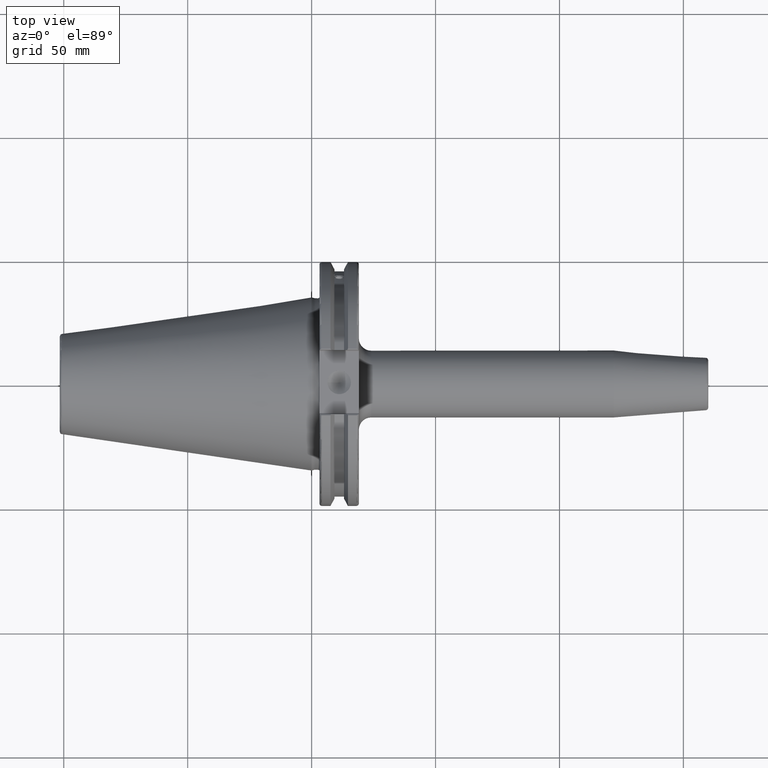
[diagram: clean part render]
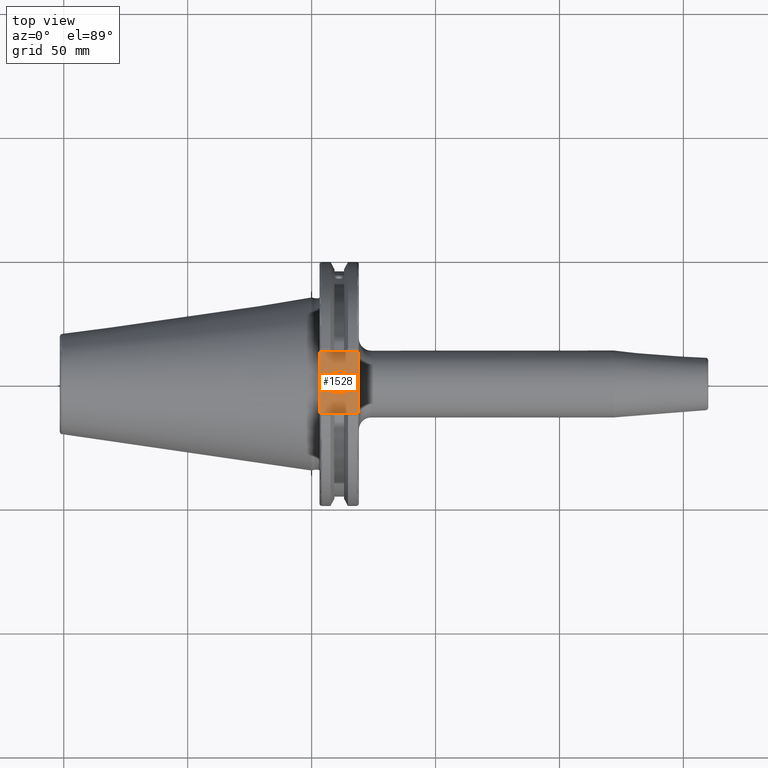
[diagram: same view with one face highlighted and labeled with its STEP entity id]
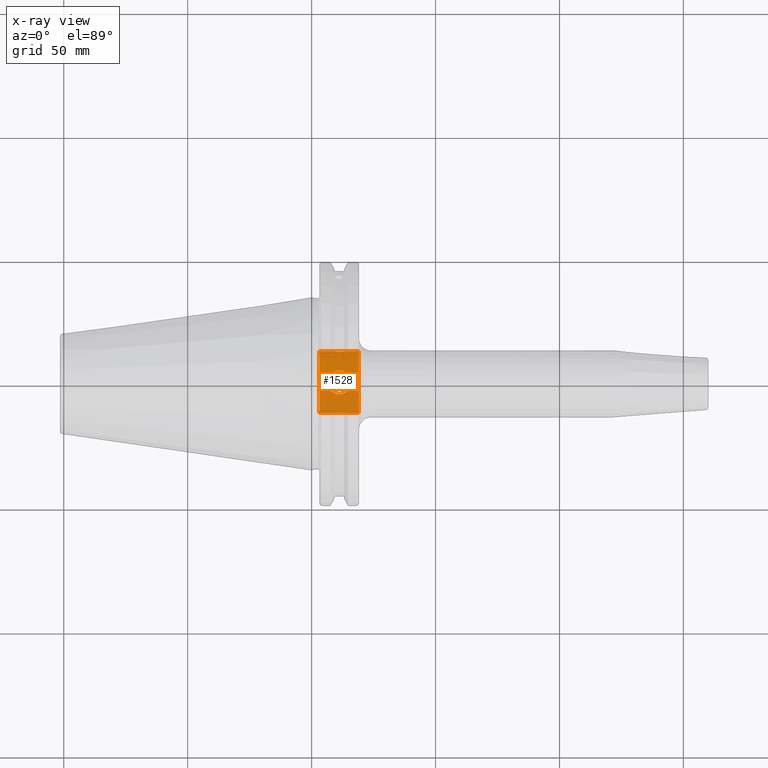
[diagram: x-ray of the same camera — body ghosted, the highlighted face saturated]
A machine part, top view. The second image highlights one B-rep face of the part: STEP entity #1528.
The next image is the same camera in x-ray: the body ghosted, the highlighted face saturated — about 0% of this face is hidden behind the body in this view.
In plain terms, the highlighted planar face has unit normal (0, 0, 1).
Its self-contained STEP definition (entity closure, byte-faithful):
#89=LINE('',#2191,#181);
#131=LINE('',#2782,#223);
#159=LINE('',#3011,#251);
#161=LINE('',#3014,#253);
#181=VECTOR('',#1777,10.);
#223=VECTOR('',#1965,10.);
#251=VECTOR('',#2059,10.);
#253=VECTOR('',#2063,10.);
#313=FACE_BOUND('',#534,.T.);
#348=PLANE('',#1710);
#429=FACE_OUTER_BOUND('',#533,.T.);
#533=EDGE_LOOP('',(#1403,#1404,#1405,#1406));
#534=EDGE_LOOP('',(#1407));
#611=CIRCLE('',#1702,4.7625);
#634=VERTEX_POINT('',#2188);
#635=VERTEX_POINT('',#2190);
#720=VERTEX_POINT('',#2779);
#721=VERTEX_POINT('',#2781);
#767=VERTEX_POINT('',#3050);
#790=EDGE_CURVE('',#634,#635,#89,.T.);
#901=EDGE_CURVE('',#720,#721,#131,.T.);
#964=EDGE_CURVE('',#635,#720,#159,.T.);
#966=EDGE_CURVE('',#721,#634,#161,.T.);
#981=EDGE_CURVE('',#767,#767,#611,.T.);
#1403=ORIENTED_EDGE('',*,*,#964,.F.);
#1404=ORIENTED_EDGE('',*,*,#790,.F.);
#1405=ORIENTED_EDGE('',*,*,#966,.F.);
#1406=ORIENTED_EDGE('',*,*,#901,.F.);
#1407=ORIENTED_EDGE('',*,*,#981,.T.);
#1528=ADVANCED_FACE('',(#429,#313),#348,.T.);
#1702=AXIS2_PLACEMENT_3D('',#3051,#2098,#2099);
#1710=AXIS2_PLACEMENT_3D('',#3060,#2115,#2116);
#1777=DIRECTION('',(0.,-1.,0.));
#1965=DIRECTION('',(0.,1.,0.));
#2059=DIRECTION('',(-1.,1.31581988103722E-16,0.));
#2063=DIRECTION('',(1.,0.,0.));
#2098=DIRECTION('center_axis',(0.,0.,-1.));
#2099=DIRECTION('ref_axis',(1.,0.,0.));
#2115=DIRECTION('center_axis',(0.,0.,1.));
#2116=DIRECTION('ref_axis',(1.,0.,0.));
#2188=CARTESIAN_POINT('',(19.05,12.45,37.719));
#2190=CARTESIAN_POINT('',(19.05,-12.45,37.719));
#2191=CARTESIAN_POINT('',(19.05,0.,37.719));
#2779=CARTESIAN_POINT('',(3.175,-12.45,37.719));
#2781=CARTESIAN_POINT('',(3.175,12.45,37.719));
#2782=CARTESIAN_POINT('',(3.175,24.60625,37.719));
#3011=CARTESIAN_POINT('',(10.63125,-12.45,37.719));
#3014=CARTESIAN_POINT('',(19.06875,12.45,37.719));
#3050=CARTESIAN_POINT('',(6.3716,-5.83238038093927E-16,37.719));
#3051=CARTESIAN_POINT('Origin',(11.1341,0.,37.719));
#3060=CARTESIAN_POINT('Origin',(18.0875,0.,37.719));